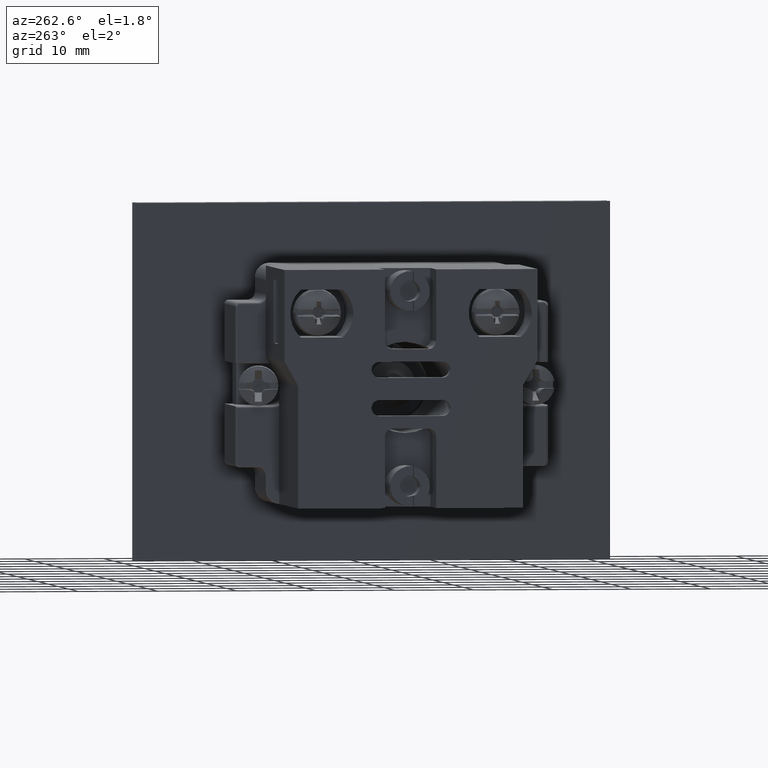
[diagram: clean part render]
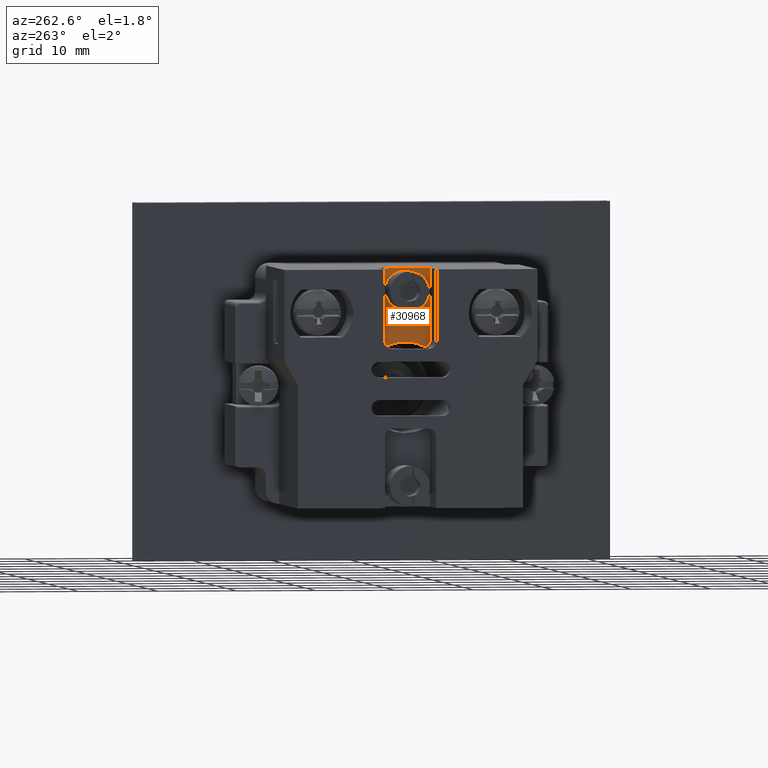
[diagram: same view with one face highlighted and labeled with its STEP entity id]
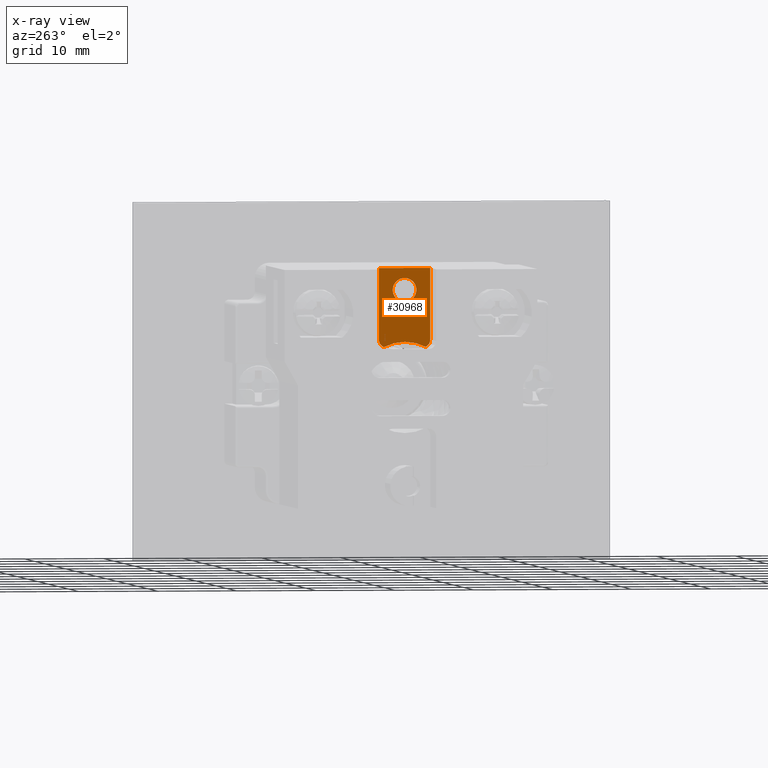
[diagram: x-ray of the same camera — body ghosted, the highlighted face saturated]
A machine part, auxiliary view. The second image highlights one B-rep face of the part: STEP entity #30968.
The next image is the same camera in x-ray: the body ghosted, the highlighted face saturated — about 0% of this face is hidden behind the body in this view.
In plain terms, the highlighted face is a freeform B-spline surface patch.
Its self-contained STEP definition (entity closure, byte-faithful):
#29895=CARTESIAN_POINT('',(-0.799346435372380,1.727351595746991,12.400000000000000));
#29896=VERTEX_POINT('',#29895);
#29903=CARTESIAN_POINT('',(-6.079831826664979,1.703998386257386,12.400000000000000));
#29904=VERTEX_POINT('',#29903);
#29905=CARTESIAN_POINT('',(-3.417123578269125,-3.364098868524204,12.399999999999993));
#29906=DIRECTION('',(0.0,0.0,-1.0));
#29907=DIRECTION('',(-1.0,0.0,0.0));
#29908=AXIS2_PLACEMENT_3D('',#29905,#29906,#29907);
#29909=CIRCLE('',#29908,5.725000000000000);
#29910=EDGE_CURVE('',#29904,#29896,#29909,.T.);
#30016=CARTESIAN_POINT('',(-6.717123578269126,2.635901131475799,12.399999999999993));
#30017=VERTEX_POINT('',#30016);
#30018=CARTESIAN_POINT('',(-5.717123578269128,2.635901131475799,12.400000000000000));
#30019=DIRECTION('',(0.0,0.0,-1.0));
#30020=DIRECTION('',(0.0,-1.0,0.0));
#30021=AXIS2_PLACEMENT_3D('',#30018,#30019,#30020);
#30022=CIRCLE('',#30021,1.000000000000000);
#30023=EDGE_CURVE('',#29904,#30017,#30022,.T.);
#30235=CARTESIAN_POINT('',(-1.967123578269126,8.885901131475796,12.399999999999993));
#30236=VERTEX_POINT('',#30235);
#30237=CARTESIAN_POINT('',(-3.467123578269126,8.885901131475796,12.399999999999993));
#30238=DIRECTION('',(0.0,0.0,-1.0));
#30239=DIRECTION('',(1.0,0.0,0.0));
#30240=AXIS2_PLACEMENT_3D('',#30237,#30238,#30239);
#30241=CIRCLE('',#30240,1.500000000000000);
#30242=EDGE_CURVE('',#30236,#30236,#30241,.T.);
#30834=CARTESIAN_POINT('',(-0.217123578269127,11.635901131475796,12.399999999999993));
#30835=VERTEX_POINT('',#30834);
#30836=CARTESIAN_POINT('',(-0.217123578269127,2.635901131475797,12.399999999999993));
#30837=VERTEX_POINT('',#30836);
#30838=CARTESIAN_POINT('',(-0.217123578269127,11.635901131475796,12.399999999999993));
#30839=DIRECTION('',(0.0,-1.0,0.0));
#30840=VECTOR('',#30839,8.999999999999998);
#30841=LINE('',#30838,#30840);
#30842=EDGE_CURVE('',#30835,#30837,#30841,.T.);
#30905=CARTESIAN_POINT('',(-1.217123578269128,2.635901131475797,12.400000000000000));
#30906=DIRECTION('',(0.0,0.0,-1.0));
#30907=DIRECTION('',(1.0,0.0,0.0));
#30908=AXIS2_PLACEMENT_3D('',#30905,#30906,#30907);
#30909=CIRCLE('',#30908,1.0);
#30910=EDGE_CURVE('',#30837,#29896,#30909,.T.);
#30921=CARTESIAN_POINT('',(-6.717123578269126,11.635901131475796,12.399999999999993));
#30922=VERTEX_POINT('',#30921);
#30923=CARTESIAN_POINT('',(-6.717123578269126,2.635901131475799,12.399999999999993));
#30924=DIRECTION('',(0.0,1.0,0.0));
#30925=VECTOR('',#30924,8.999999999999996);
#30926=LINE('',#30923,#30925);
#30927=EDGE_CURVE('',#30017,#30922,#30926,.T.);
#30947=CARTESIAN_POINT('',(-6.717123578269128,1.703998386257385,12.399999999999993));
#30948=CARTESIAN_POINT('',(-0.217123578269126,1.703998386257385,12.399999999999993));
#30949=CARTESIAN_POINT('',(-6.717123578269128,11.635901131475798,12.399999999999993));
#30950=CARTESIAN_POINT('',(-0.217123578269126,11.635901131475798,12.399999999999993));
#30951=B_SPLINE_SURFACE_WITH_KNOTS('',1,1,((#30947,#30949),(#30948,#30950)),.UNSPECIFIED.,.F.,.F.,.U.,(2,2),(2,2),(0.0,6.500000000000002),(0.0,9.931902745218412),.UNSPECIFIED.);
#30952=ORIENTED_EDGE('',*,*,#29910,.T.);
#30953=ORIENTED_EDGE('',*,*,#30910,.F.);
#30954=ORIENTED_EDGE('',*,*,#30842,.F.);
#30955=CARTESIAN_POINT('',(-6.717123578269126,11.635901131475796,12.399999999999993));
#30956=DIRECTION('',(1.0,0.0,0.0));
#30957=VECTOR('',#30956,6.499999999999998);
#30958=LINE('',#30955,#30957);
#30959=EDGE_CURVE('',#30922,#30835,#30958,.T.);
#30960=ORIENTED_EDGE('',*,*,#30959,.F.);
#30961=ORIENTED_EDGE('',*,*,#30927,.F.);
#30962=ORIENTED_EDGE('',*,*,#30023,.F.);
#30963=EDGE_LOOP('',(#30952,#30953,#30954,#30960,#30961,#30962));
#30964=FACE_OUTER_BOUND('',#30963,.T.);
#30965=ORIENTED_EDGE('',*,*,#30242,.T.);
#30966=EDGE_LOOP('',(#30965));
#30967=FACE_BOUND('',#30966,.T.);
#30968=ADVANCED_FACE('',(#30964,#30967),#30951,.T.);